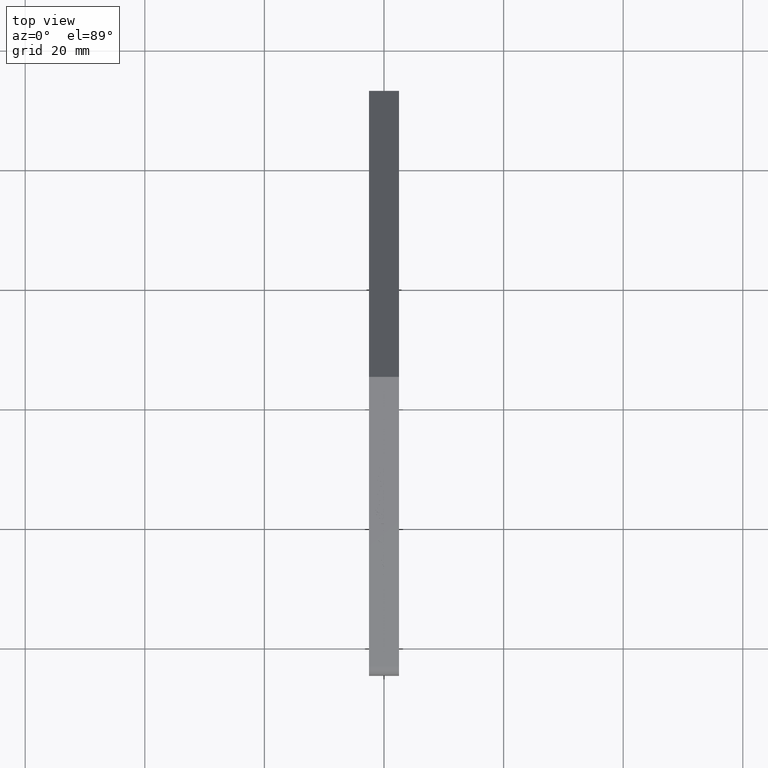
[diagram: clean part render]
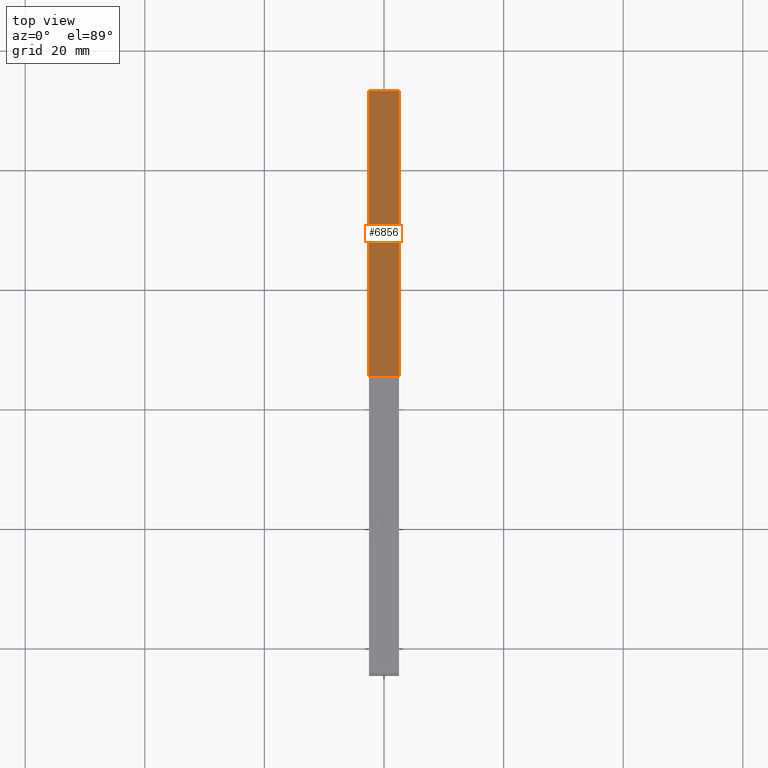
[diagram: same view with one face highlighted and labeled with its STEP entity id]
A machine part, top view. The second image highlights one B-rep face of the part: STEP entity #6856.
In plain terms, the highlighted planar face has unit normal (0, 0.766, 0.6428).
Its self-contained STEP definition (entity closure, byte-faithful):
#229 = CARTESIAN_POINT ( 'NONE',  ( -2.500000000000000000, 73.09783299600437090, -58.21457957381940673 ) ) ;
#254 = CARTESIAN_POINT ( 'NONE',  ( -2.500000000000000000, 73.09783299600437090, -58.21457957381940673 ) ) ;
#258 = CARTESIAN_POINT ( 'NONE',  ( -2.500000000000000000, 24.25000000000000000, 7.392231892978140301E-15 ) ) ;
#644 = FACE_OUTER_BOUND ( 'NONE', #6955, .T. ) ;
#1471 = VERTEX_POINT ( 'NONE', #1697 ) ;
#1697 = CARTESIAN_POINT ( 'NONE',  ( 2.500000000000000000, 73.09783299600437090, -58.21457957381940673 ) ) ;
#1841 = ORIENTED_EDGE ( 'NONE', *, *, #11416, .T. ) ;
#1969 = ORIENTED_EDGE ( 'NONE', *, *, #5254, .F. ) ;
#2096 = PLANE ( 'NONE',  #8967 ) ;
#2271 = LINE ( 'NONE', #258, #6367 ) ;
#2952 = CARTESIAN_POINT ( 'NONE',  ( -2.500000000000000000, 24.25000000000000000, 7.392231892978140301E-15 ) ) ;
#3830 = ORIENTED_EDGE ( 'NONE', *, *, #6513, .T. ) ;
#4028 = DIRECTION ( 'NONE',  ( 0.000000000000000000, -0.6427876154508010975, 0.7660444382821879339 ) ) ;
#4871 = CARTESIAN_POINT ( 'NONE',  ( 2.500000000000000000, 73.09783299600437090, -58.21457957381940673 ) ) ;
#5254 = EDGE_CURVE ( 'NONE', #12429, #1471, #9172, .T. ) ;
#6053 = VERTEX_POINT ( 'NONE', #2952 ) ;
#6086 = VECTOR ( 'NONE', #13194, 1000.000000000000000 ) ;
#6367 = VECTOR ( 'NONE', #8657, 1000.000000000000000 ) ;
#6513 = EDGE_CURVE ( 'NONE', #6053, #7698, #2271, .T. ) ;
#6856 = ADVANCED_FACE ( 'NONE', ( #644 ), #2096, .T. ) ;
#6955 = EDGE_LOOP ( 'NONE', ( #11988, #1969, #1841, #3830 ) ) ;
#7166 = VECTOR ( 'NONE', #13423, 1000.000000000000227 ) ;
#7698 = VERTEX_POINT ( 'NONE', #8447 ) ;
#8190 = CARTESIAN_POINT ( 'NONE',  ( -2.500000000000000000, 73.09783299600437090, -58.21457957381940673 ) ) ;
#8447 = CARTESIAN_POINT ( 'NONE',  ( 2.500000000000000000, 24.25000000000000000, 7.392231892978140301E-15 ) ) ;
#8657 = DIRECTION ( 'NONE',  ( 1.000000000000000000, -0.000000000000000000, -0.000000000000000000 ) ) ;
#8767 = EDGE_CURVE ( 'NONE', #1471, #7698, #11770, .T. ) ;
#8967 = AXIS2_PLACEMENT_3D ( 'NONE', #229, #12648, #9454 ) ;
#9042 = CARTESIAN_POINT ( 'NONE',  ( -2.500000000000000000, 73.09783299600437090, -58.21457957381940673 ) ) ;
#9172 = LINE ( 'NONE', #9042, #6086 ) ;
#9454 = DIRECTION ( 'NONE',  ( 0.000000000000000000, -0.6427876154508010975, 0.7660444382821879339 ) ) ;
#10499 = LINE ( 'NONE', #8190, #13478 ) ;
#11416 = EDGE_CURVE ( 'NONE', #12429, #6053, #10499, .T. ) ;
#11770 = LINE ( 'NONE', #4871, #7166 ) ;
#11988 = ORIENTED_EDGE ( 'NONE', *, *, #8767, .F. ) ;
#12429 = VERTEX_POINT ( 'NONE', #254 ) ;
#12648 = DIRECTION ( 'NONE',  ( 0.000000000000000000, 0.7660444382821880449, 0.6427876154508012085 ) ) ;
#13194 = DIRECTION ( 'NONE',  ( 1.000000000000000000, -0.000000000000000000, -0.000000000000000000 ) ) ;
#13423 = DIRECTION ( 'NONE',  ( 0.000000000000000000, -0.6427876154508010975, 0.7660444382821879339 ) ) ;
#13478 = VECTOR ( 'NONE', #4028, 1000.000000000000227 ) ;